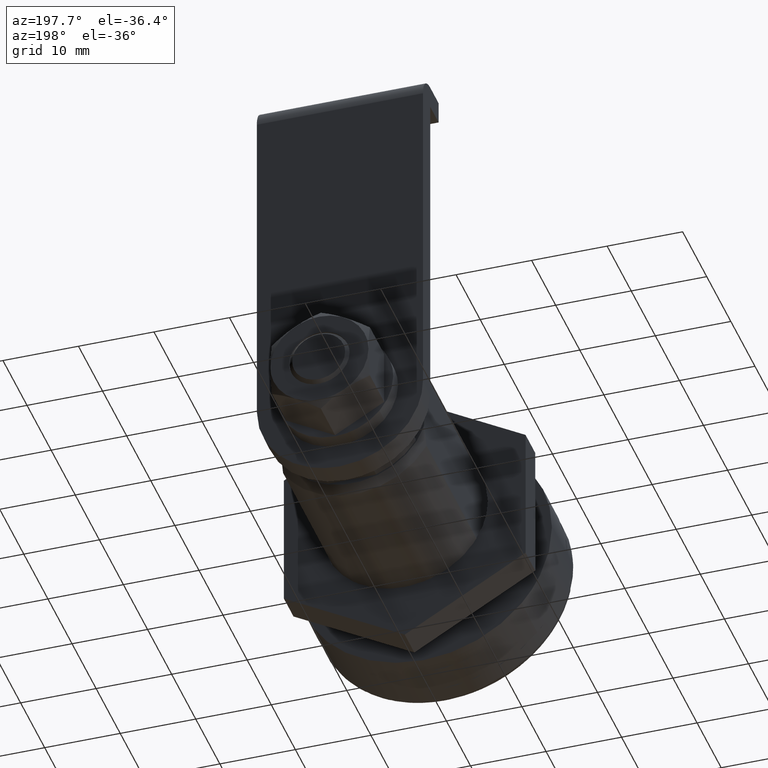
[diagram: clean part render]
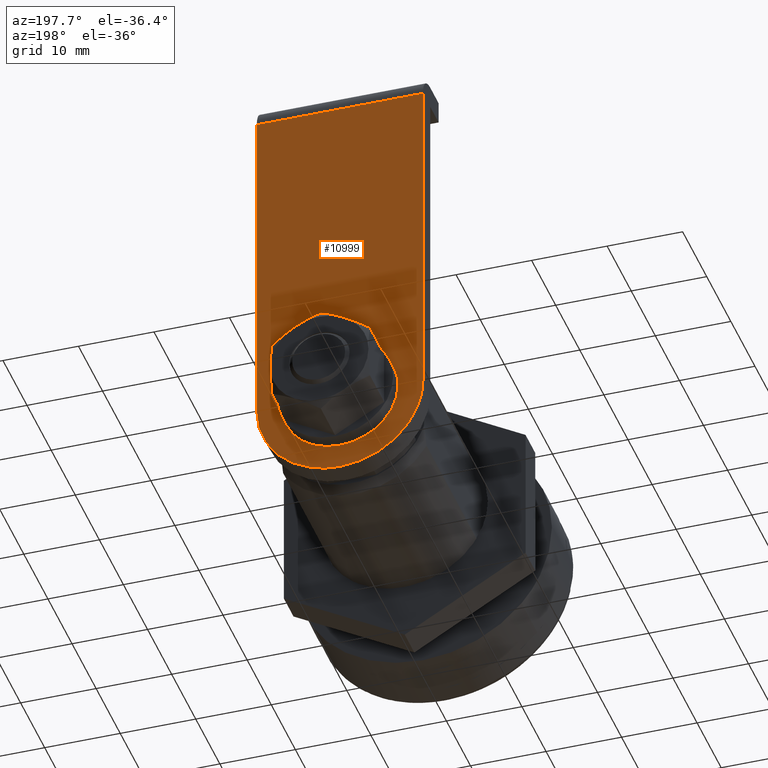
[diagram: same view with one face highlighted and labeled with its STEP entity id]
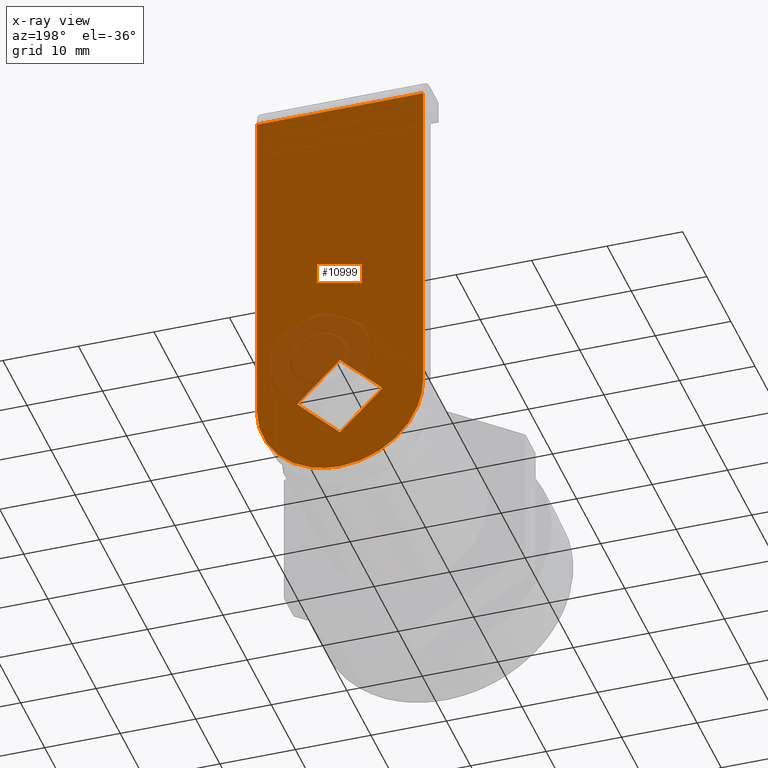
[diagram: x-ray of the same camera — body ghosted, the highlighted face saturated]
A machine part, auxiliary view. The second image highlights one B-rep face of the part: STEP entity #10999.
The next image is the same camera in x-ray: the body ghosted, the highlighted face saturated — about 11% of this face is hidden behind the body in this view.
In plain terms, the highlighted face is a freeform B-spline surface patch.
Its self-contained STEP definition (entity closure, byte-faithful):
#10574=CARTESIAN_POINT('',(130.435711000000200,-5.656854249492140,0.0));
#10575=VERTEX_POINT('',#10574);
#10581=CARTESIAN_POINT('',(130.435711000000200,-4.440892E-016,-5.656854249492380));
#10582=VERTEX_POINT('',#10581);
#10583=CARTESIAN_POINT('',(130.435711000000200,-4.440892E-016,-5.656854249492380));
#10584=CARTESIAN_POINT('',(130.435711000000200,-5.656854249492140,0.0));
#10585=QUASI_UNIFORM_CURVE('',1,(#10583,#10584),.UNSPECIFIED.,.F.,.U.);
#10586=EDGE_CURVE('',#10582,#10575,#10585,.T.);
#10609=CARTESIAN_POINT('',(130.435711000000200,5.656854249492380,-4.440892E-016));
#10610=VERTEX_POINT('',#10609);
#10611=CARTESIAN_POINT('',(130.435711000000200,5.656854249492380,-4.440892E-016));
#10612=CARTESIAN_POINT('',(130.435711000000200,-4.440892E-016,-5.656854249492380));
#10613=QUASI_UNIFORM_CURVE('',1,(#10611,#10612),.UNSPECIFIED.,.F.,.U.);
#10614=EDGE_CURVE('',#10610,#10582,#10613,.T.);
#10637=CARTESIAN_POINT('',(130.435711000000200,0.0,5.656854249492380));
#10638=VERTEX_POINT('',#10637);
#10639=CARTESIAN_POINT('',(130.435711000000200,0.0,5.656854249492380));
#10640=CARTESIAN_POINT('',(130.435711000000200,5.656854249492380,-4.440892E-016));
#10641=QUASI_UNIFORM_CURVE('',1,(#10639,#10640),.UNSPECIFIED.,.F.,.U.);
#10642=EDGE_CURVE('',#10638,#10610,#10641,.T.);
#10663=CARTESIAN_POINT('',(130.435711000000200,-5.656854249492140,0.0));
#10664=CARTESIAN_POINT('',(130.435711000000200,0.0,5.656854249492380));
#10665=QUASI_UNIFORM_CURVE('',1,(#10663,#10664),.UNSPECIFIED.,.F.,.U.);
#10666=EDGE_CURVE('',#10575,#10638,#10665,.T.);
#10724=CARTESIAN_POINT('',(130.435711000000200,1.387779E-014,-11.0));
#10725=VERTEX_POINT('',#10724);
#10731=CARTESIAN_POINT('',(130.435711000000200,-10.999999999999661,-0.000002697112158));
#10732=VERTEX_POINT('',#10731);
#10733=CARTESIAN_POINT('',(130.435711000000200,-10.999999999999661,-0.000002697112158));
#10734=CARTESIAN_POINT('',(130.435710999999910,-11.000148212308471,-0.809946656310917));
#10735=CARTESIAN_POINT('',(130.435711000000400,-10.845209312159319,-2.204778691825925));
#10736=CARTESIAN_POINT('',(130.435711000000110,-10.203580191083811,-4.274356214283017));
#10737=CARTESIAN_POINT('',(130.435711000000510,-9.360293029733466,-5.875520537384908));
#10738=CARTESIAN_POINT('',(130.435710999999710,-8.186497065730368,-7.418284338670263));
#10739=CARTESIAN_POINT('',(130.435711000000310,-6.974896760321044,-8.571780167133817));
#10740=CARTESIAN_POINT('',(130.435711000000400,-5.406421488569559,-9.633796341647035));
#10741=CARTESIAN_POINT('',(130.435710999999710,-4.013543257788621,-10.282135986294740));
#10742=CARTESIAN_POINT('',(130.435711000001700,-2.159737971050657,-10.844467059931111));
#10743=CARTESIAN_POINT('',(130.435710999995190,-0.899967938536502,-11.000265690447341));
#10744=CARTESIAN_POINT('',(130.435711000000200,1.387779E-014,-11.0));
#10745=B_SPLINE_CURVE_WITH_KNOTS('',3,(#10733,#10734,#10735,#10736,#10737,#10738,#10739,#10740,#10741,#10742,#10743,#10744),.UNSPECIFIED.,.F.,.U.,(4,1,1,1,1,1,1,1,1,4),(0.000000092194945,2.429816530513033,4.184725741430958,6.479592410500496,7.829492235468456,9.989314990296037,11.474237447220901,13.499123594348250,14.579051618005980,17.278866491482400),.UNSPECIFIED.);
#10746=EDGE_CURVE('',#10732,#10725,#10745,.T.);
#10748=CARTESIAN_POINT('',(130.435711000000200,1.387779E-014,11.0));
#10749=VERTEX_POINT('',#10748);
#10750=CARTESIAN_POINT('',(130.435711000000200,1.387779E-014,11.0));
#10751=CARTESIAN_POINT('',(130.435711000000310,-0.989969171863265,11.000321112358870));
#10752=CARTESIAN_POINT('',(130.435711000000310,-2.384685200798334,10.810427716432860));
#10753=CARTESIAN_POINT('',(130.435711000000110,-4.220915407748335,10.191140395197770));
#10754=CARTESIAN_POINT('',(130.435711000000400,-5.599536298702534,9.518316840656917));
#10755=CARTESIAN_POINT('',(130.435711000000110,-7.230500415166982,8.384759060168875));
#10756=CARTESIAN_POINT('',(130.435711000000000,-8.645217756388606,6.916947788566382));
#10757=CARTESIAN_POINT('',(130.435711000000710,-9.717978286326858,5.245385491280489));
#10758=CARTESIAN_POINT('',(130.435710999998010,-10.431082247861230,3.636711296196354));
#10759=CARTESIAN_POINT('',(130.435711000007390,-10.891487328717700,1.889843922745076));
#10760=CARTESIAN_POINT('',(130.435710999989990,-11.000053401602660,0.629950693322829));
#10761=CARTESIAN_POINT('',(130.435711000000200,-10.999999999999661,-0.000002697112158));
#10762=B_SPLINE_CURVE_WITH_KNOTS('',3,(#10750,#10751,#10752,#10753,#10754,#10755,#10756,#10757,#10758,#10759,#10760,#10761),.UNSPECIFIED.,.F.,.U.,(4,1,1,1,1,1,1,1,1,4),(0.000000091254350,2.969798847142995,4.184726477024286,5.804635171798962,7.559550044119746,10.124329589617350,11.879209179382940,13.499125969852180,15.389006217272181,17.278869531775470),.UNSPECIFIED.);
#10763=EDGE_CURVE('',#10749,#10732,#10762,.T.);
#10786=CARTESIAN_POINT('',(130.435711000000200,45.0,11.0));
#10787=VERTEX_POINT('',#10786);
#10788=CARTESIAN_POINT('',(130.435711000000200,45.0,11.0));
#10789=CARTESIAN_POINT('',(130.435711000000200,1.387779E-014,11.0));
#10790=QUASI_UNIFORM_CURVE('',1,(#10788,#10789),.UNSPECIFIED.,.F.,.U.);
#10791=EDGE_CURVE('',#10787,#10749,#10790,.T.);
#10834=CARTESIAN_POINT('',(130.435711000000200,45.0,-11.0));
#10835=VERTEX_POINT('',#10834);
#10836=CARTESIAN_POINT('',(130.435711000000200,45.0,-11.0));
#10837=CARTESIAN_POINT('',(130.435711000000200,1.387779E-014,-11.0));
#10838=QUASI_UNIFORM_CURVE('',1,(#10836,#10837),.UNSPECIFIED.,.F.,.U.);
#10839=EDGE_CURVE('',#10835,#10725,#10838,.T.);
#10936=CARTESIAN_POINT('',(130.435711000000200,45.0,-11.0));
#10937=CARTESIAN_POINT('',(130.435711000000200,45.0,11.0));
#10938=QUASI_UNIFORM_CURVE('',1,(#10936,#10937),.UNSPECIFIED.,.F.,.U.);
#10939=EDGE_CURVE('',#10835,#10787,#10938,.T.);
#10981=CARTESIAN_POINT('',(130.435711000000200,-13.797199891460769,-12.098899957359730));
#10982=CARTESIAN_POINT('',(130.435711000000200,-13.797199891460769,12.098900547445711));
#10983=CARTESIAN_POINT('',(130.435711000000200,47.797201393498163,-12.098899957359730));
#10984=CARTESIAN_POINT('',(130.435711000000200,47.797201393498163,12.098900547445711));
#10985=B_SPLINE_SURFACE_WITH_KNOTS('',1,1,((#10981,#10983),(#10982,#10984)),.UNSPECIFIED.,.F.,.F.,.U.,(2,2),(2,2),(0.0,24.197800504805439),(0.0,61.594401284958927),.UNSPECIFIED.);
#10986=ORIENTED_EDGE('',*,*,#10763,.T.);
#10987=ORIENTED_EDGE('',*,*,#10746,.T.);
#10988=ORIENTED_EDGE('',*,*,#10839,.F.);
#10989=ORIENTED_EDGE('',*,*,#10939,.T.);
#10990=ORIENTED_EDGE('',*,*,#10791,.T.);
#10991=EDGE_LOOP('',(#10986,#10987,#10988,#10989,#10990));
#10992=FACE_OUTER_BOUND('',#10991,.T.);
#10993=ORIENTED_EDGE('',*,*,#10666,.T.);
#10994=ORIENTED_EDGE('',*,*,#10642,.T.);
#10995=ORIENTED_EDGE('',*,*,#10614,.T.);
#10996=ORIENTED_EDGE('',*,*,#10586,.T.);
#10997=EDGE_LOOP('',(#10993,#10994,#10995,#10996));
#10998=FACE_BOUND('',#10997,.T.);
#10999=ADVANCED_FACE('',(#10992,#10998),#10985,.F.);